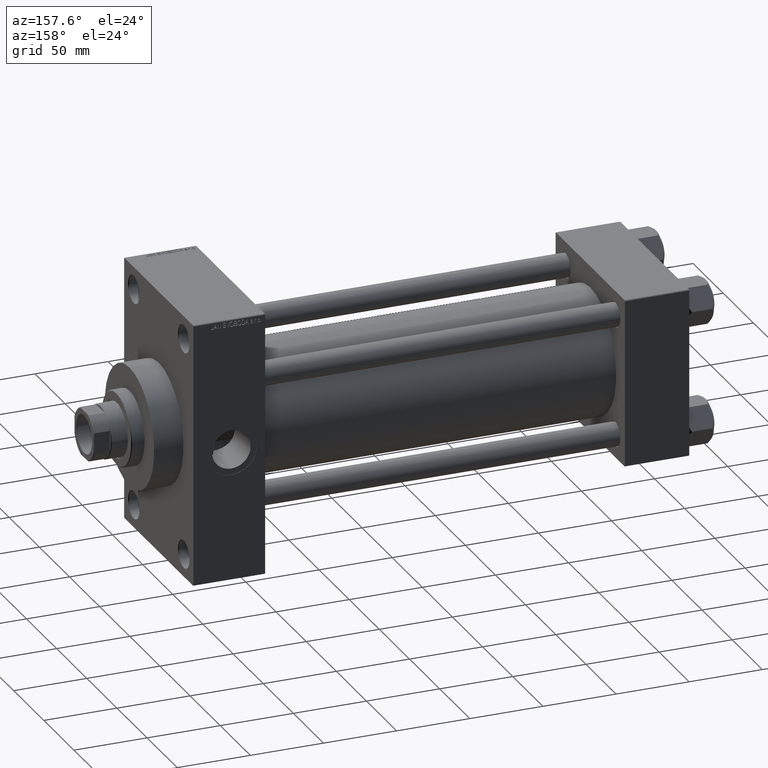
[diagram: clean part render]
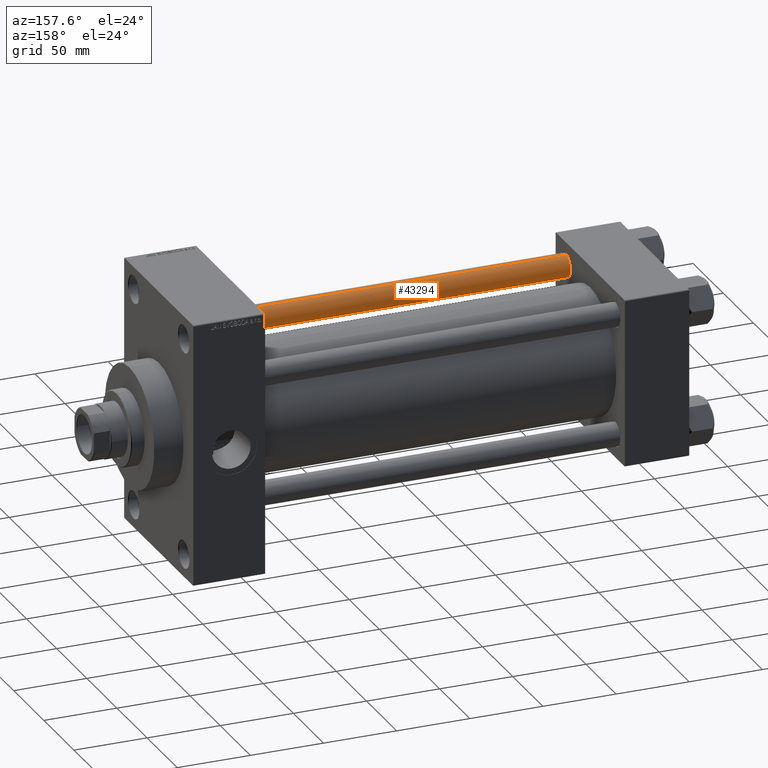
[diagram: same view with one face highlighted and labeled with its STEP entity id]
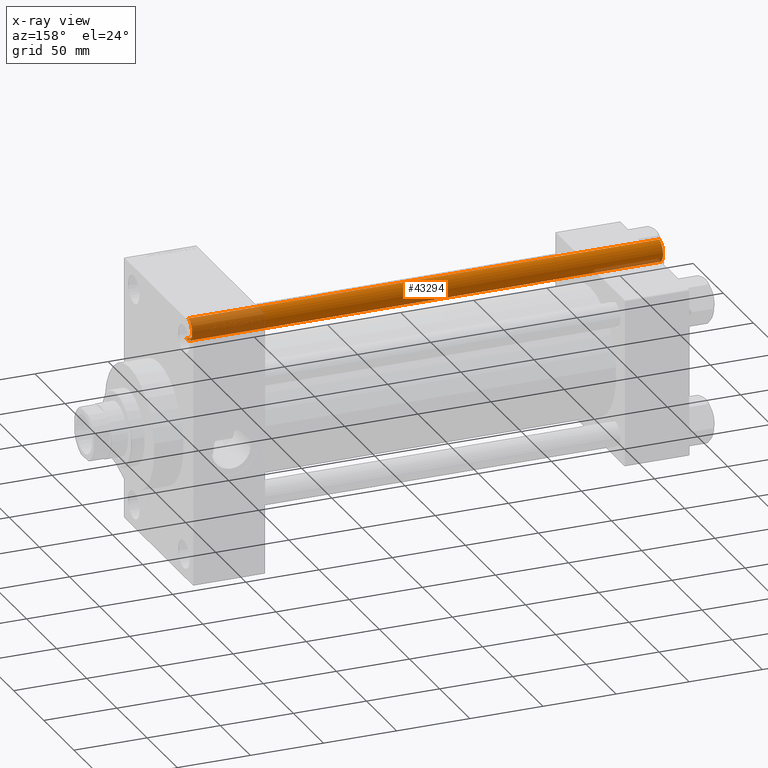
[diagram: x-ray of the same camera — body ghosted, the highlighted face saturated]
A machine part, auxiliary view. The second image highlights one B-rep face of the part: STEP entity #43294.
The next image is the same camera in x-ray: the body ghosted, the highlighted face saturated — about 18% of this face is hidden behind the body in this view.
In plain terms, the highlighted cylindrical surface (edge-blend (fillet) strip) has radius 8 mm, axis along (1, 0, 0).
Its self-contained STEP definition (entity closure, byte-faithful):
#1179 = DIRECTION ( 'NONE',  ( -0.000000000000000000, -0.000000000000000000, -1.000000000000000000 ) ) ;
#1836 = CARTESIAN_POINT ( 'NONE',  ( 8.000000000000000000, 9.797174393178825657E-16, 322.5000000000000000 ) ) ;
#3744 = EDGE_CURVE ( 'NONE', #29827, #9975, #33241, .T. ) ;
#4985 = CIRCLE ( 'NONE', #35796, 8.000000000000000000 ) ;
#7824 = FACE_OUTER_BOUND ( 'NONE', #27568, .T. ) ;
#9975 = VERTEX_POINT ( 'NONE', #34794 ) ;
#13601 = CARTESIAN_POINT ( 'NONE',  ( 0.000000000000000000, 0.000000000000000000, 0.5000000000000004441 ) ) ;
#14616 = ORIENTED_EDGE ( 'NONE', *, *, #31333, .T. ) ;
#14825 = DIRECTION ( 'NONE',  ( -1.000000000000000000, 0.000000000000000000, 0.000000000000000000 ) ) ;
#17072 = ORIENTED_EDGE ( 'NONE', *, *, #21446, .T. ) ;
#17401 = DIRECTION ( 'NONE',  ( -0.000000000000000000, -0.000000000000000000, -1.000000000000000000 ) ) ;
#21446 = EDGE_CURVE ( 'NONE', #33182, #22831, #4985, .T. ) ;
#21615 = EDGE_CURVE ( 'NONE', #33182, #9975, #28732, .T. ) ;
#22519 = CARTESIAN_POINT ( 'NONE',  ( 0.000000000000000000, 0.000000000000000000, 323.0000000000000000 ) ) ;
#22831 = VERTEX_POINT ( 'NONE', #27806 ) ;
#23099 = LINE ( 'NONE', #26490, #24541 ) ;
#24044 = ORIENTED_EDGE ( 'NONE', *, *, #3744, .T. ) ;
#24541 = VECTOR ( 'NONE', #1179, 1000.000000000000000 ) ;
#25896 = CYLINDRICAL_SURFACE ( 'NONE', #34803, 8.000000000000000000 ) ;
#26490 = CARTESIAN_POINT ( 'NONE',  ( -8.000000000000000000, 0.000000000000000000, 323.0000000000000000 ) ) ;
#27568 = EDGE_LOOP ( 'NONE', ( #41723, #17072, #14616, #24044 ) ) ;
#27806 = CARTESIAN_POINT ( 'NONE',  ( -8.000000000000000000, 0.000000000000000000, 322.5000000000000000 ) ) ;
#28307 = DIRECTION ( 'NONE',  ( -0.000000000000000000, -0.000000000000000000, 1.000000000000000000 ) ) ;
#28732 = LINE ( 'NONE', #29210, #40430 ) ;
#29210 = CARTESIAN_POINT ( 'NONE',  ( 8.000000000000000000, 9.797174393178825657E-16, 323.0000000000000000 ) ) ;
#29827 = VERTEX_POINT ( 'NONE', #36622 ) ;
#31206 = DIRECTION ( 'NONE',  ( 1.000000000000000000, 0.000000000000000000, 0.000000000000000000 ) ) ;
#31333 = EDGE_CURVE ( 'NONE', #22831, #29827, #23099, .T. ) ;
#31953 = DIRECTION ( 'NONE',  ( 1.000000000000000000, 0.000000000000000000, 0.000000000000000000 ) ) ;
#33182 = VERTEX_POINT ( 'NONE', #1836 ) ;
#33241 = CIRCLE ( 'NONE', #36320, 8.000000000000000000 ) ;
#34794 = CARTESIAN_POINT ( 'NONE',  ( 8.000000000000000000, 9.797174393178825657E-16, 0.5000000000000004441 ) ) ;
#34803 = AXIS2_PLACEMENT_3D ( 'NONE', #22519, #37260, #14825 ) ;
#35796 = AXIS2_PLACEMENT_3D ( 'NONE', #36072, #47404, #31953 ) ;
#36072 = CARTESIAN_POINT ( 'NONE',  ( 0.000000000000000000, 0.000000000000000000, 322.5000000000000000 ) ) ;
#36320 = AXIS2_PLACEMENT_3D ( 'NONE', #13601, #28307, #31206 ) ;
#36622 = CARTESIAN_POINT ( 'NONE',  ( -8.000000000000000000, 0.000000000000000000, 0.5000000000000004441 ) ) ;
#37260 = DIRECTION ( 'NONE',  ( -0.000000000000000000, -0.000000000000000000, -1.000000000000000000 ) ) ;
#40430 = VECTOR ( 'NONE', #17401, 1000.000000000000000 ) ;
#41723 = ORIENTED_EDGE ( 'NONE', *, *, #21615, .F. ) ;
#43294 = ADVANCED_FACE ( 'NONE', ( #7824 ), #25896, .T. ) ;
#47404 = DIRECTION ( 'NONE',  ( 0.000000000000000000, 0.000000000000000000, -1.000000000000000000 ) ) ;